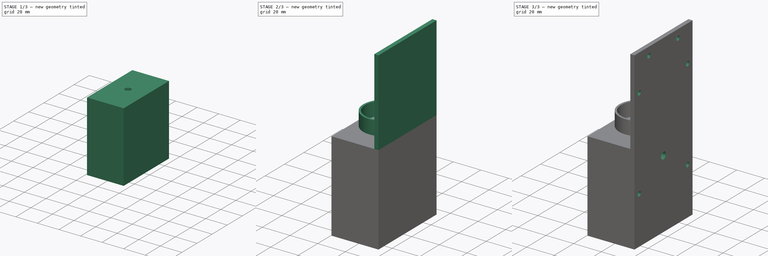
[diagram: build sequence overview — one tinted view per stage of 3, left to right]
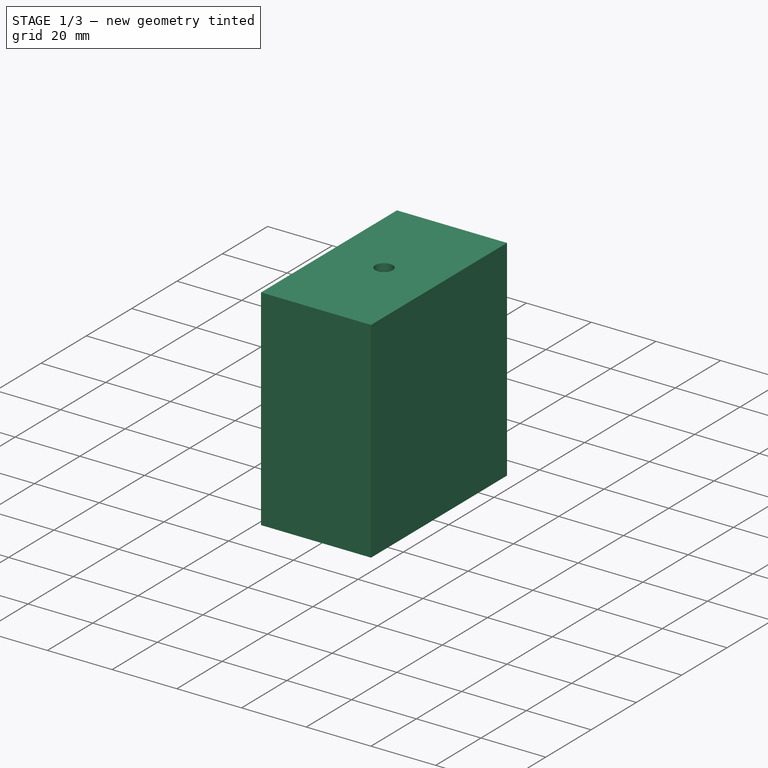
[diagram: stage 1 of 3 — iso view after this stage's code; geometry added in this stage tinted green]
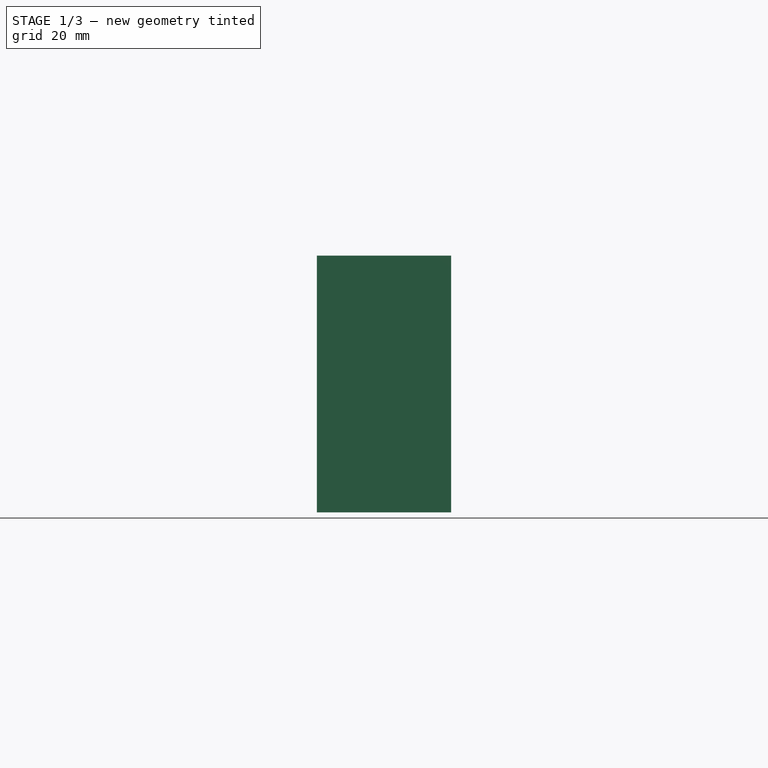
[diagram: stage 1 of 3 — front view after this stage's code; geometry added in this stage tinted green]
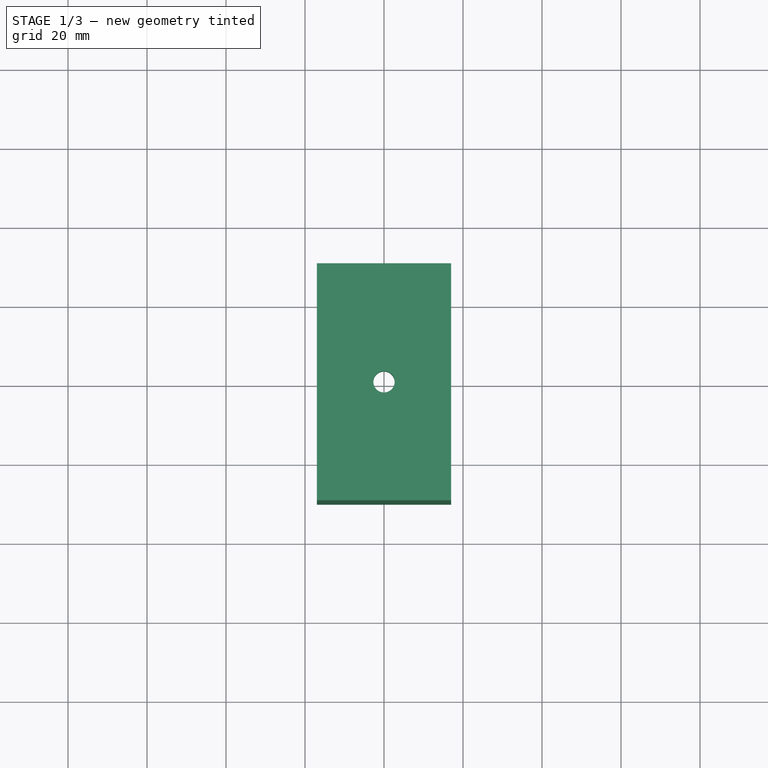
[diagram: stage 1 of 3 — top view after this stage's code; geometry added in this stage tinted green]
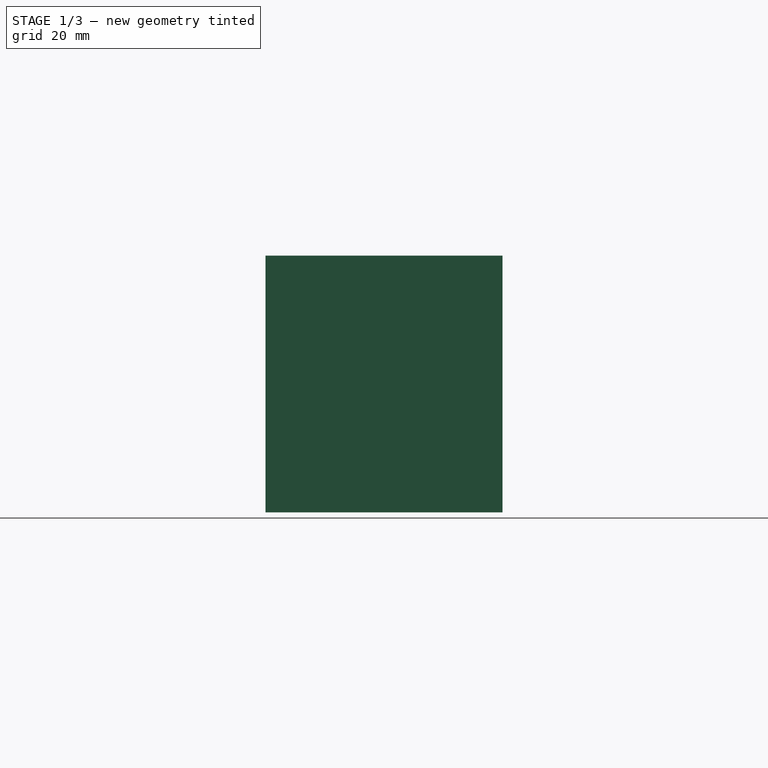
[diagram: stage 1 of 3 — right view after this stage's code; geometry added in this stage tinted green]
FCSTD DOCUMENT  (FreeCAD 0.20R29603 (Git))
Label: blowpipe_adapter_4
License: All rights reserved
LicenseURL: http://en.wikipedia.org/wiki/All_rights_reserved
objects: Sketcher::SketchObject×7, PartDesign::Pad×3, PartDesign::Pocket×3, PartDesign::Body×2, Spreadsheet::Sheet×1, PartDesign::Revolution×1, PartDesign::Boolean×1, Part::Feature×1
note: 25 computed .brp shape members not serialized (recipe doc carries the construction recipe); baked Part::Feature solids carry a one-line shape summary decoded from their .brp

FEATURE [Sketcher::SketchObject] Sketch
  FullyConstrained = true
  MapMode = 5
  Placement = pos=(0,0,0) rot=(1,0,0;1.5708rad)
  Support = -> [XZ_Plane]
  expr: Constraints[14] = Spreadsheet.OR
  expr: Constraints[15] = Spreadsheet.BP_R + Spreadsheet.BP_OR_D / 3
  expr: Constraints[16] = Spreadsheet.MP_R
  expr: Constraints[17] = Spreadsheet.BP_LENGTH
  expr: Constraints[18] = Spreadsheet.MP_CONE
  expr: Constraints[19] = Spreadsheet.MP_LENGTH
  expr: Constraints[21] = Spreadsheet.M_R + 0.2
  expr: Constraints[22] = Spreadsheet.M_LENGTH
  expr: Constraints[23] = Spreadsheet.BP_OR_D
  expr: Constraints[25] = (Spreadsheet.BP_OR_ID + Spreadsheet.BP_OR_D) / 2
  expr: Constraints[26] = Spreadsheet.BP_OR_D / 2 + 3
  expr: Constraints[27] = 1.5 * Spreadsheet.BP_OR_D + 2 * 4
  expr: Constraints[38] = Spreadsheet.M_OR_D
  expr: Constraints[39] = (Spreadsheet.M_OR_D + Spreadsheet.M_OR_ID) / 2
  expr: Constraints[44] = (Spreadsheet.M_OR_D + Spreadsheet.M_OR_ID) / 2
  sketch-geometry (14):
    g0: LineSegment StartX=8.33333 StartY=0 StartZ=0 EndX=15 EndY=0 EndZ=0
    g1: LineSegment StartX=15 StartY=0 StartZ=0 EndX=15 EndY=65 EndZ=0
    g2: LineSegment StartX=15 StartY=65 StartZ=0 EndX=2.7 EndY=65 EndZ=0
    g3: LineSegment StartX=2.7 StartY=65 StartZ=0 EndX=2.7 EndY=62.9539 EndZ=0
    g4: LineSegment StartX=2.7 StartY=55 StartZ=0 EndX=5 EndY=55 EndZ=0
    g5: LineSegment StartX=5 StartY=55 StartZ=0 EndX=5 EndY=45 EndZ=0
    g6: LineSegment StartX=5 StartY=45 StartZ=0 EndX=8.33333 EndY=35 EndZ=0
    g7: LineSegment StartX=8.33333 StartY=35 StartZ=0 EndX=8.33333 EndY=12.9285 EndZ=0
    g8: ArcOfCircle CenterX=8.75 CenterY=4.25 CenterZ=0 NormalX=0 NormalY=0 NormalZ=1 AngleXU=0 Radius=1.25 StartAngle=4.37255 EndAngle=8.19382
    g9: ArcOfCircle CenterX=8.75 CenterY=11.75 CenterZ=0 NormalX=0 NormalY=0 NormalZ=1 AngleXU=0 Radius=1.25 StartAngle=4.37255 EndAngle=8.19382
    g10: LineSegment StartX=8.33333 StartY=3.07149 StartZ=0 EndX=8.33333 EndY=0 EndZ=0
    g11: LineSegment StartX=8.33333 StartY=10.5715 StartZ=0 EndX=8.33333 EndY=5.42851 EndZ=0
    g12: ArcOfCircle CenterX=3 CenterY=62 CenterZ=0 NormalX=0 NormalY=0 NormalZ=1 AngleXU=0 Radius=1 StartAngle=4.4077 EndAngle=8.15867
    g13: LineSegment StartX=2.7 StartY=61.0461 StartZ=0 EndX=2.7 EndY=55 EndZ=0
  constraints (45):
    c: PointOnObject(g0,g-1)
    c: Horizontal(g0)
    c: Coincident(g0,g1)
    c: Vertical(g1)
    c: Coincident(g1,g2)
    c: Horizontal(g2)
    c: Coincident(g2,g3)
    c: Vertical(g3)
    c: Coincident(g13,g4)
    c: Coincident(g4,g5)
    c: Coincident(g5,g6)
    c: Coincident(g6,g7)
    c: Coincident(g10,g0)
    c: Vertical(g5)
    c: DistanceX(g-1,g0) = 15
    c: DistanceX(g-1,g0) = 8.33333
    c: DistanceX(g-1,g5) = 5
    c: DistanceY(g10,g7) = 35
    c: DistanceY(g6,g5) = 10
    c: DistanceY(g5,g5) = 10
    c: Horizontal(g4)
    c: DistanceX(g-1,g13) = 2.7
    c: DistanceY(g13,g3) = 10
    c: Diameter(g8) = 2.5
    c: Equal(g8,g9)
    c: DistanceX(g-1,g8) = 8.75
    c: DistanceY(g-1,g8) = 4.25
    c: DistanceY(g-1,g9) = 11.75
    c: Vertical(g9,g8)
    c: Coincident(g11,g8)
    c: Coincident(g10,g8)
    c: Coincident(g7,g9)
    c: Coincident(g11,g9)
    c: Vertical(g10)
    c: Vertical(g11)
    c: Vertical(g7)
    c: Vertical(g8,g8)
    c: Vertical(g9,g7)
    c: Diameter(g12) = 2
    c: DistanceY(g12,g2) = 3
    c: Coincident(g3,g12)
    c: Coincident(g13,g12)
    c: Vertical(g13)
    c: Vertical(g3,g12)
    c: DistanceX(g-1,g12) = 3
FEATURE [Spreadsheet::Sheet] Spreadsheet
  cells = A1=BP_R; B1(BP_R)==15 / 2; C1=set; A2=BP_OR_ID; B2(BP_OR_ID)=15; C2=set; A3=BP_OR_D; B3(BP_OR_D)=2.5; C3=set; A4=BP_LENGTH; B4(BP_LENGTH)=35; C4=set; A5=M_R; B5(M_R)==5 / 2; C5=set; A6=M_OR_ID; B6(M_OR_ID)=4; C6=set; A7=M_OR_D; B7(M_OR_D)=2; C7=set; A8=M_LENGTH; B8(M_LENGTH)=10; C8=set; A9=MP_CONE_LENGTH; B9(MP_CONE)=10; C9=set; A10=MP_R; B10(MP_R)==10 / 2; C10=set; A11=MP_LENGTH; B11(MP_LENGTH)=10; C11=set; A12=OR; B12(OR)==30 / 2; C12=set; A13=SIDE; B13(SIDE)=40; C13=set; A14=HEIGHT; B14(HEIGHT)==B4 + B8 + B9 + B11; A15=PCB_WIDTH; B15(PCB_WIDTH)=56; C15=set; A16=PCB_LENGTH; B16(PCB_LENGTH)=72; C16=set; A17=PCB_APS_W_OFF; B17(PCB_APS_W_OFF)=17.3; C17=set; A18=PCB_VENT; B18(PCB_VENT)=18.5; C18=set; A19=PCB_MOUNT_Y_SOUTH; B19(PCB_MOUNT_Y_SOUTH)==B22 - B18 + 3; A20=PCB_MOUNT_Y_NORTH; B20(PCB_MOUNT_Y_NORTH)==B19 + B16 - 6; A21=MOTOR_LENGTH; B21(MOTOR_LENGTH)=62; C21=set; A22=PCB_VENT_OFFSET; B22(PCB_VENT_OFFSET)==B14 - B8 - B9 / 2
FEATURE [PartDesign::Revolution] Revolution
  Angle = 360
  Axis = (0,-2e-16,1)
  Base = (0,0,0)
  Placement = pos=(0,0,0) rot=(1,0,0;1.5708rad)
  Profile = -> Sketch
  ReferenceAxis = -> Sketch [V_Axis]
  Reversed = true
FEATURE [PartDesign::Body] Body  label="BP_mount"
  Group = -> [Sketch,Revolution]
  Origin = -> Origin
  Tip = -> Revolution
FEATURE [Sketcher::SketchObject] Sketch001
  FullyConstrained = true
  MapMode = 5
  Support = -> [XY_Plane001]
  expr: Constraints[13] = 34
  expr: Constraints[2] = Spreadsheet.OR * 2
  sketch-geometry (7):
    g0: GeomPoint X=0 Y=0 Z=0
    g1: Circle CenterX=0 CenterY=0 CenterZ=0 NormalX=0 NormalY=0 NormalZ=1 AngleXU=0 Radius=15
    g2: LineSegment StartX=-17 StartY=30 StartZ=0 EndX=-17 EndY=-30 EndZ=0
    g3: LineSegment StartX=-17 StartY=-30 StartZ=0 EndX=17 EndY=-30 EndZ=0
    g4: LineSegment StartX=17 StartY=-30 StartZ=0 EndX=17 EndY=30 EndZ=0
    g5: LineSegment StartX=17 StartY=30 StartZ=0 EndX=-17 EndY=30 EndZ=0
    g6: GeomPoint X=0 Y=0 Z=0
  constraints (15):
    c: Coincident(g0,g-1)
    c: Coincident(g1,g0)
    c: Diameter(g1) = 30
    c: Coincident(g2,g3)
    c: Coincident(g3,g4)
    c: Coincident(g4,g5)
    c: Coincident(g5,g2)
    c: Horizontal(g3)
    c: Horizontal(g5)
    c: Vertical(g2)
    c: Vertical(g4)
    c: Symmetric(g3,g2,g6)
    c: Coincident(g6,g1)
    c: DistanceX(g3,g3) = 34
    c: DistanceY(g4,g4) = 60
FEATURE [PartDesign::Boolean] Boolean
  Group = -> [Body]
  Type = 0
FEATURE [PartDesign::Pad] Pad  label="rectengularpad"
  BaseFeature = -> Boolean
  Direction = (0,0,1)
  Length = 65
  Length2 = 10
  Profile = -> Sketch001
  ReferenceAxis = -> Sketch001 [N_Axis]
  Type = 0
  expr: Length = Spreadsheet.HEIGHT
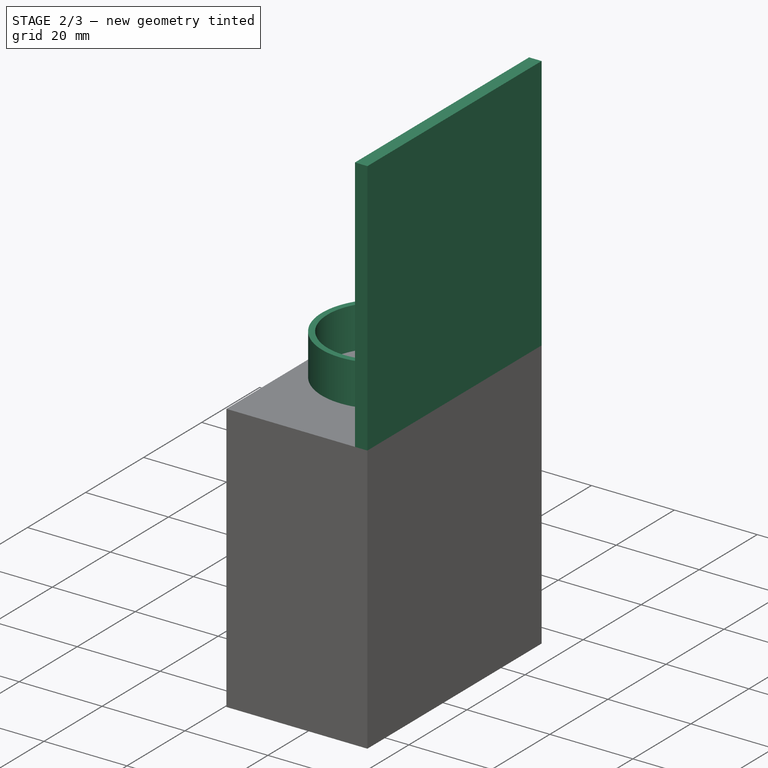
[diagram: stage 2 of 3 — iso view after this stage's code; geometry added in this stage tinted green]
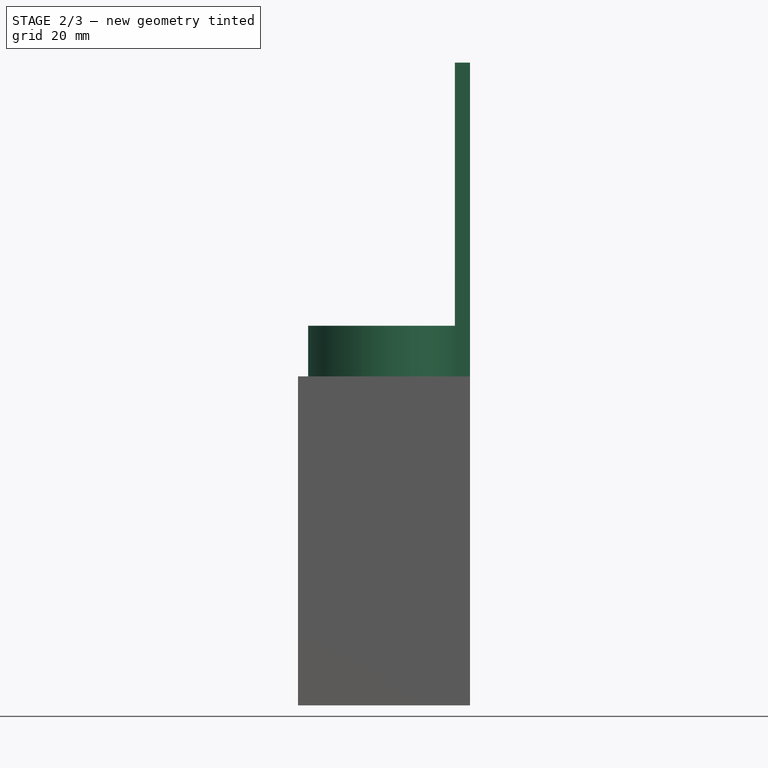
[diagram: stage 2 of 3 — front view after this stage's code; geometry added in this stage tinted green]
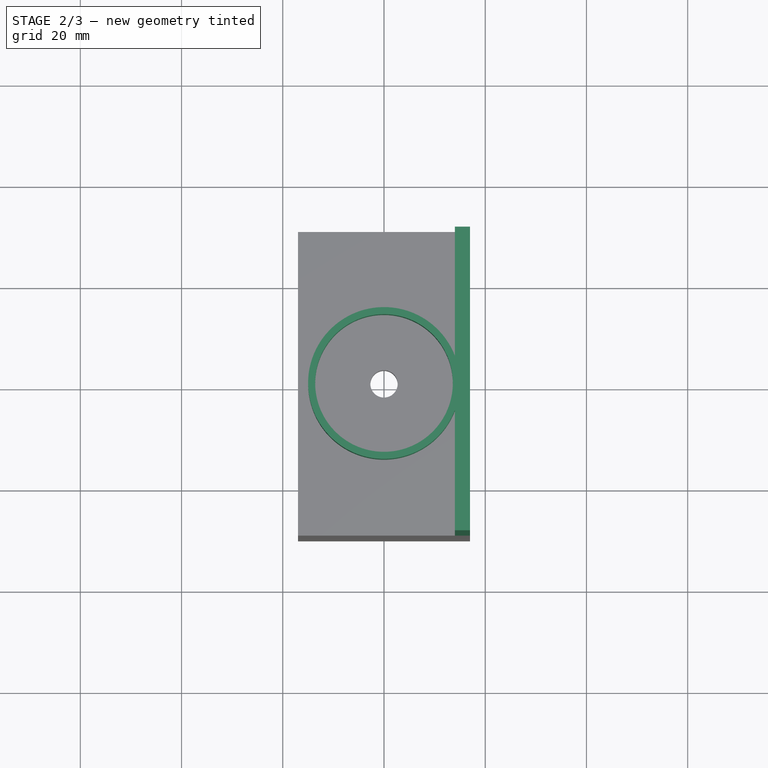
[diagram: stage 2 of 3 — top view after this stage's code; geometry added in this stage tinted green]
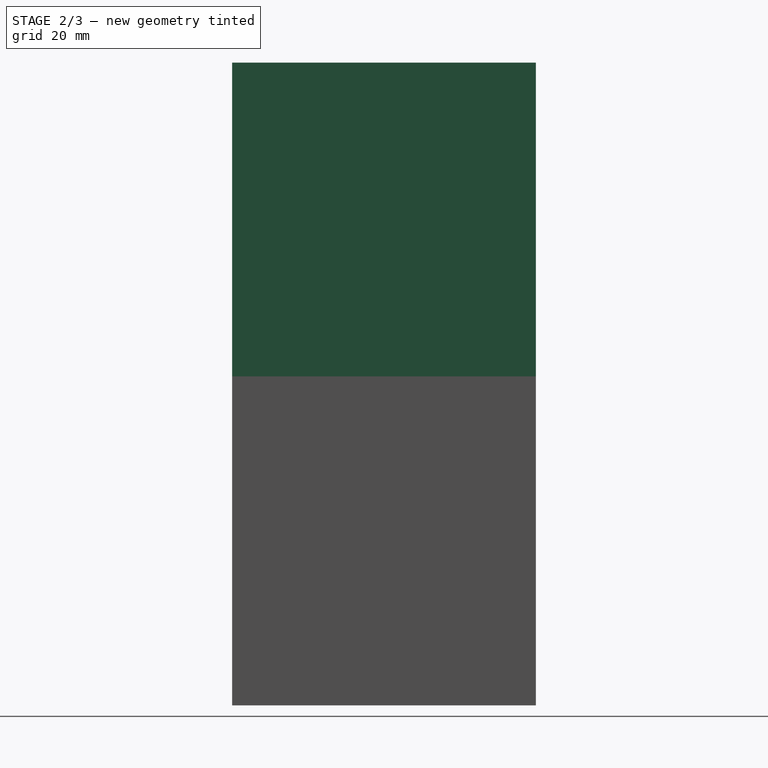
[diagram: stage 2 of 3 — right view after this stage's code; geometry added in this stage tinted green]
FEATURE [Sketcher::SketchObject] Sketch002
  FullyConstrained = true
  MapMode = 5
  Placement = pos=(0,0,65) rot=(0,0,1;0rad)
  Support = -> [Pad]
  sketch-geometry (2):
    g0: Circle CenterX=0 CenterY=0 CenterZ=0 NormalX=0 NormalY=0 NormalZ=1 AngleXU=0 Radius=13.6
    g1: Circle CenterX=0 CenterY=0 CenterZ=0 NormalX=0 NormalY=0 NormalZ=1 AngleXU=0 Radius=15
  constraints (4):
    c: Coincident(g0,g-1)
    c: Coincident(g1,g0)
    c: Diameter(g0) = 27.2
    c: Diameter(g1) = 30
FEATURE [PartDesign::Pad] Pad001  label="motorshroud"
  BaseFeature = -> Pad
  Direction = (0,0,1)
  Length = 10
  Length2 = 10
  Profile = -> Sketch002
  ReferenceAxis = -> Sketch002 [N_Axis]
  Type = 0
FEATURE [Sketcher::SketchObject] Sketch003
  FullyConstrained = true
  MapMode = 5
  Placement = pos=(0,0,65) rot=(0,0,1;0rad)
  Support = -> [Pad001]
  expr: Constraints[9] = Spreadsheet.PCB_WIDTH + 4
  sketch-geometry (4):
    g0: LineSegment StartX=14 StartY=30 StartZ=0 EndX=17 EndY=30 EndZ=0
    g1: LineSegment StartX=17 StartY=30 StartZ=0 EndX=17 EndY=-30 EndZ=0
    g2: LineSegment StartX=17 StartY=-30 StartZ=0 EndX=14 EndY=-30 EndZ=0
    g3: LineSegment StartX=14 StartY=-30 StartZ=0 EndX=14 EndY=30 EndZ=0
  constraints (11):
    c: Coincident(g0,g1)
    c: Coincident(g1,g2)
    c: Coincident(g2,g3)
    c: Coincident(g3,g0)
    c: Horizontal(g0)
    c: Horizontal(g2)
    c: Vertical(g1)
    c: DistanceX(g0,g0) = 3
    c: DistanceX(g-1,g2) = 14
    c: DistanceY(g1,g1) = 60
    c: Symmetric(g2,g0,g-1)
FEATURE [PartDesign::Pad] Pad002  label="PCB_battery"
  BaseFeature = -> Pad001
  Direction = (0,0,1)
  Length = 62
  Length2 = 10
  Profile = -> Sketch003
  ReferenceAxis = -> Sketch003 [N_Axis]
  Type = 0
  expr: Length = Spreadsheet.MOTOR_LENGTH
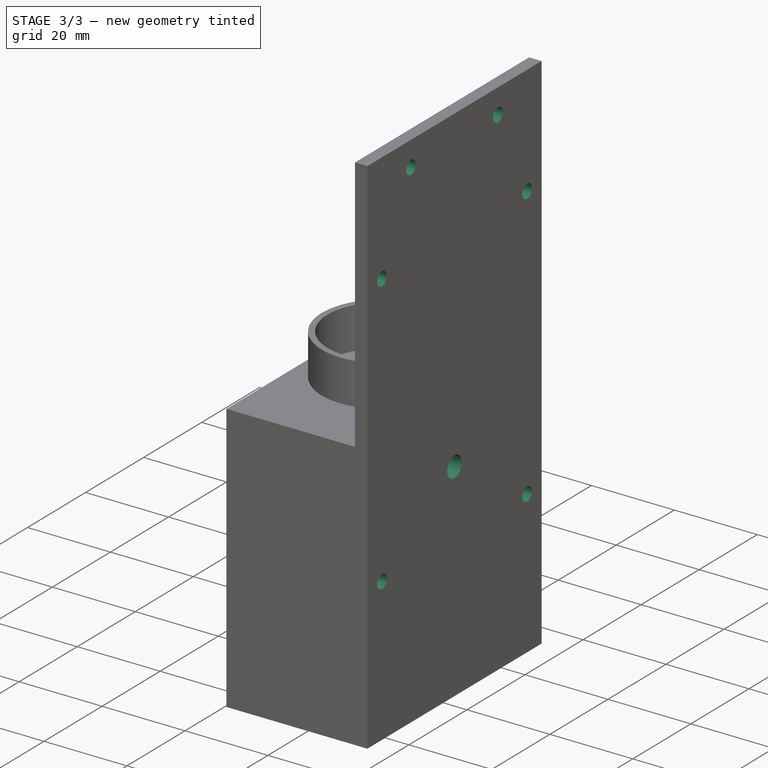
[diagram: stage 3 of 3 — iso view after this stage's code; geometry added in this stage tinted green]
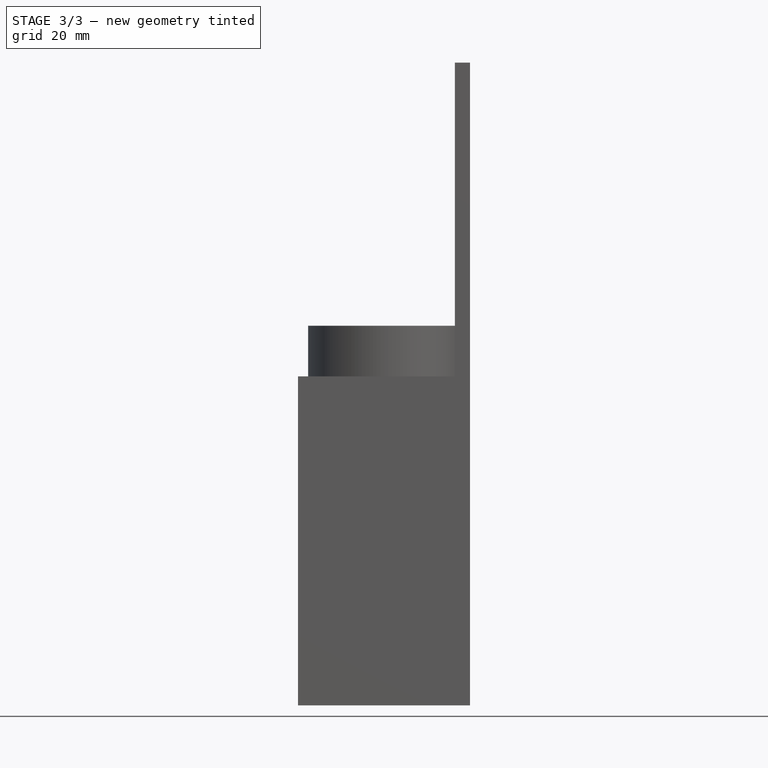
[diagram: stage 3 of 3 — front view after this stage's code; geometry added in this stage tinted green]
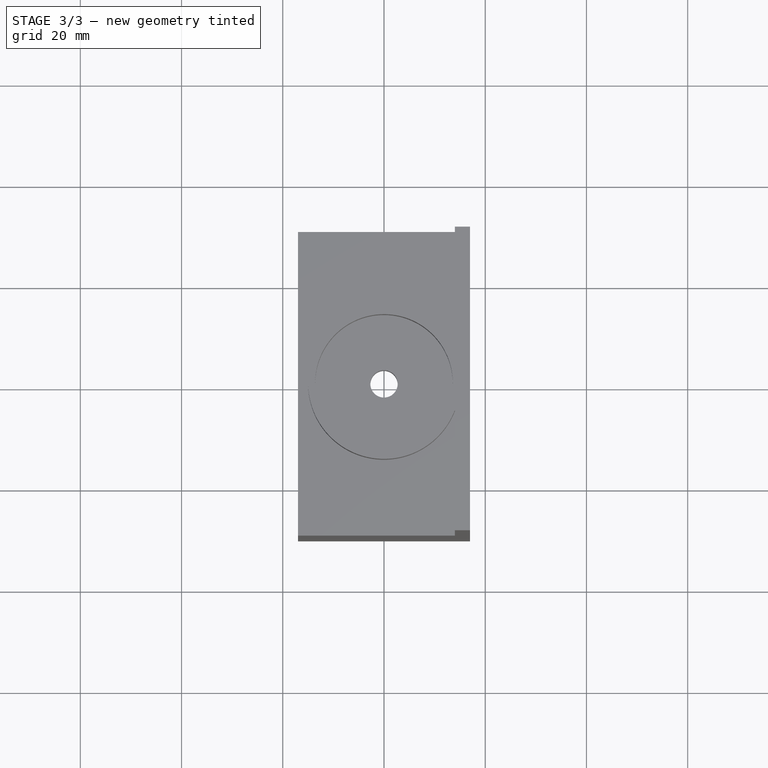
[diagram: stage 3 of 3 — top view after this stage's code; geometry added in this stage tinted green]
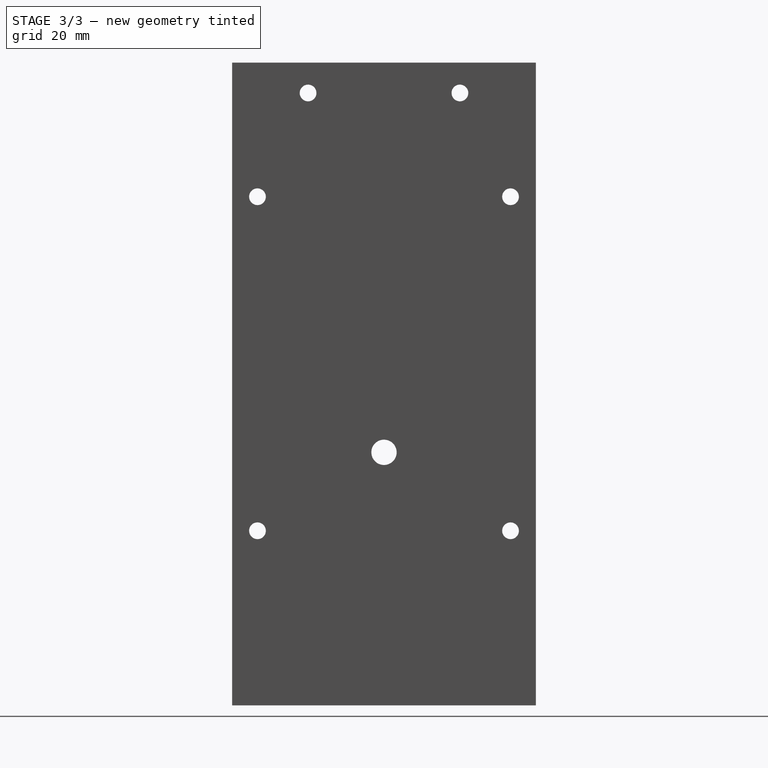
[diagram: stage 3 of 3 — right view after this stage's code; geometry added in this stage tinted green]
FEATURE [Sketcher::SketchObject] Sketch004
  FullyConstrained = true
  MapMode = 5
  Placement = pos=(17,0,0) rot=(0.57735,0.57735,0.57735;2.0944rad)
  Support = -> [Pad002]
  expr: Constraints[14] = Spreadsheet.HEIGHT + Spreadsheet.MOTOR_LENGTH - 6
  expr: Constraints[7] = Spreadsheet.PCB_MOUNT_Y_SOUTH
  expr: Constraints[8] = Spreadsheet.PCB_MOUNT_Y_NORTH
  expr: Constraints[9] = Spreadsheet.PCB_WIDTH / 2 - 3
  sketch-geometry (6):
    g0: Circle CenterX=-25 CenterY=34.5 CenterZ=0 NormalX=0 NormalY=0 NormalZ=1 AngleXU=0 Radius=1.65
    g1: Circle CenterX=25 CenterY=34.5 CenterZ=0 NormalX=0 NormalY=0 NormalZ=1 AngleXU=0 Radius=1.65
    g2: Circle CenterX=25 CenterY=100.5 CenterZ=0 NormalX=0 NormalY=0 NormalZ=1 AngleXU=0 Radius=1.65
    g3: Circle CenterX=-25 CenterY=100.5 CenterZ=0 NormalX=0 NormalY=0 NormalZ=1 AngleXU=0 Radius=1.65
    g4: Circle CenterX=-15 CenterY=121 CenterZ=0 NormalX=0 NormalY=0 NormalZ=1 AngleXU=0 Radius=1.65
    g5: Circle CenterX=15 CenterY=121 CenterZ=0 NormalX=0 NormalY=0 NormalZ=1 AngleXU=0 Radius=1.65
  constraints (16):
    c: Diameter(g0) = 3.3
    c: Equal(g0,g1)
    c: Equal(g1,g2)
    c: Equal(g2,g3)
    c: Horizontal(g3,g2)
    c: Vertical(g0,g3)
    c: Vertical(g2,g1)
    c: DistanceY(g-1,g0) = 34.5
    c: DistanceY(g-1,g3) = 100.5
    c: DistanceX(g0,g-1) = 25
    c: Symmetric(g0,g1,g-2)
    c: Symmetric(g4,g5,g-2)
    c: Diameter(g4) = 3.3
    c: Equal(g4,g5)
    c: DistanceY(g-1,g4) = 121
    c: DistanceX(g4,g5) = 30
FEATURE [PartDesign::Pocket] Pocket  label="PCMmount"
  BaseFeature = -> Pad002
  Direction = (-1,0,0)
  Length = 50
  Length2 = 5
  Profile = -> Sketch004
  ReferenceAxis = -> Sketch004 [N_Axis]
  Type = 0
FEATURE [Sketcher::SketchObject] Sketch005
  FullyConstrained = true
  MapMode = 5
  Placement = pos=(17,0,0) rot=(0.57735,0.57735,0.57735;2.0944rad)
  Support = -> [Pocket]
  expr: Constraints[2] = Spreadsheet.PCB_VENT_OFFSET
  sketch-geometry (1):
    g0: Circle CenterX=0 CenterY=50 CenterZ=0 NormalX=0 NormalY=0 NormalZ=1 AngleXU=0 Radius=2.5
  constraints (3):
    c: PointOnObject(g0,g-2)
    c: Diameter(g0) = 5
    c: DistanceY(g-1,g0) = 50
FEATURE [PartDesign::Pocket] Pocket001  label="pressure_venting"
  BaseFeature = -> Pocket
  Direction = (-1,0,0)
  Length = 50
  Length2 = 5
  Profile = -> Sketch005
  ReferenceAxis = -> Sketch005 [N_Axis]
  Type = 0
FEATURE [Part::Feature] Part__Feature  label="PCBenclosure"
  Placement = pos=(20,0,67) rot=(0.707107,0,0.707107;3.14159rad)
  shape: bbox 23 x 64 x 80 mm, 62 faces (baked)
FEATURE [Sketcher::SketchObject] Sketch006
  FullyConstrained = true
  MapMode = 5
  Placement = pos=(-17,0,0) rot=(0.57735,-0.57735,-0.57735;2.0944rad)
  Support = -> [Pocket001]
  expr: Constraints[38] = Spreadsheet.PCB_MOUNT_Y_SOUTH
  expr: Constraints[39] = Spreadsheet.PCB_WIDTH / 2 - 3
  expr: Constraints[40] = Spreadsheet.PCB_WIDTH / 2 - 3
  sketch-geometry (14):
    g0: LineSegment StartX=-22.15 StartY=32.8546 StartZ=0 EndX=-22.15 EndY=36.1454 EndZ=0
    g1: LineSegment StartX=-22.15 StartY=36.1454 StartZ=0 EndX=-25 EndY=37.7909 EndZ=0
    g2: LineSegment StartX=-25 StartY=37.7909 StartZ=0 EndX=-27.85 EndY=36.1454 EndZ=0
    g3: LineSegment StartX=-27.85 StartY=36.1454 StartZ=0 EndX=-27.85 EndY=32.8546 EndZ=0
    g4: LineSegment StartX=-27.85 StartY=32.8546 StartZ=0 EndX=-25 EndY=31.2091 EndZ=0
    g5: LineSegment StartX=-25 StartY=31.2091 StartZ=0 EndX=-22.15 EndY=32.8546 EndZ=0
    g6: Circle CenterX=-25 CenterY=34.5 CenterZ=0 NormalX=0 NormalY=0 NormalZ=1 AngleXU=0 Radius=3.2909
    g7: LineSegment StartX=27.85 StartY=32.8546 StartZ=0 EndX=27.85 EndY=36.1454 EndZ=0
    g8: LineSegment StartX=27.85 StartY=36.1454 StartZ=0 EndX=25 EndY=37.7909 EndZ=0
    g9: LineSegment StartX=25 StartY=37.7909 StartZ=0 EndX=22.15 EndY=36.1454 EndZ=0
    g10: LineSegment StartX=22.15 StartY=36.1454 StartZ=0 EndX=22.15 EndY=32.8546 EndZ=0
    g11: LineSegment StartX=22.15 StartY=32.8546 StartZ=0 EndX=25 EndY=31.2091 EndZ=0
    g12: LineSegment StartX=25 StartY=31.2091 StartZ=0 EndX=27.85 EndY=32.8546 EndZ=0
    g13: Circle CenterX=25 CenterY=34.5 CenterZ=0 NormalX=0 NormalY=0 NormalZ=1 AngleXU=0 Radius=3.2909
  constraints (34):
    c: Coincident(g0,g1)
    c: Coincident(g1,g2)
    c: Coincident(g2,g3)
    c: Coincident(g3,g4)
    c: Coincident(g4,g5)
    c: Coincident(g5,g0)
    c: Equal(g0, g1-g5) x5
    c: PointOnObject(g0,g6)
    c: PointOnObject(g1,g6)
    c: PointOnObject(g2,g6)
    c: PointOnObject(g3,g6)
    c: PointOnObject(g4,g6)
    c: PointOnObject(g5,g6)
    c: Coincident(g7,g8)
    c: Coincident(g8,g9)
    c: Coincident(g9,g10)
    c: Coincident(g10,g11)
    c: Coincident(g11,g12)
    c: Coincident(g12,g7)
    c: Equal(g7, g8-g12) x5
    c: PointOnObject(g7,g13)
    c: PointOnObject(g8,g13)
    c: PointOnObject(g9,g13)
    c: PointOnObject(g10,g13)
    c: PointOnObject(g11,g13)
    c: PointOnObject(g12,g13)
    c: DistanceX(g3,g0) = 5.7
    c: Horizontal(g6,g13)
    c: Horizontal(g3,g0)
    c: Horizontal(g10,g7)
    c: DistanceY(g-1,g6) = 34.5
    c: DistanceX(g6,g-1) = 25
    c: DistanceX(g-1,g13) = 25
    c: DistanceX(g10,g7) = 5.7
FEATURE [PartDesign::Pocket] Pocket002  label="hexnut"
  BaseFeature = -> Pocket001
  Direction = (1,0,0)
  Length = 5
  Length2 = 5
  Profile = -> Sketch006
  ReferenceAxis = -> Sketch006 [N_Axis]
  Type = 0
FEATURE [PartDesign::Body] Body001  label="SQUARE"
  Group = -> [Sketch001,Boolean,Pad,Sketch002,Pad001,Sketch003,Pad002,Sketch004,Pocket,Sketch005,Pocket001,Sketch006,Pocket002]
  Origin = -> Origin001
  Tip = -> Pocket002
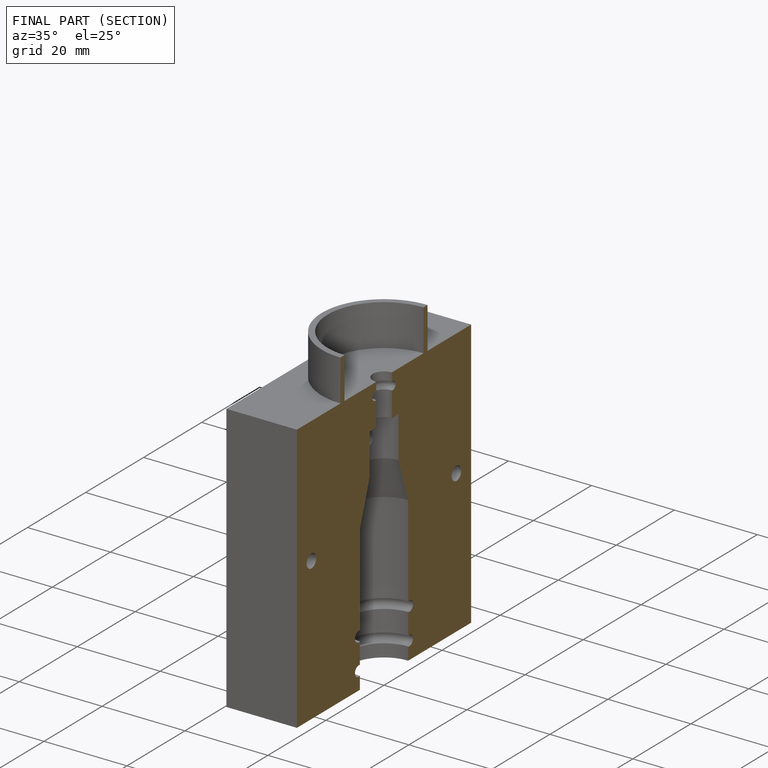
[diagram: finished part — half-section view (interior)]
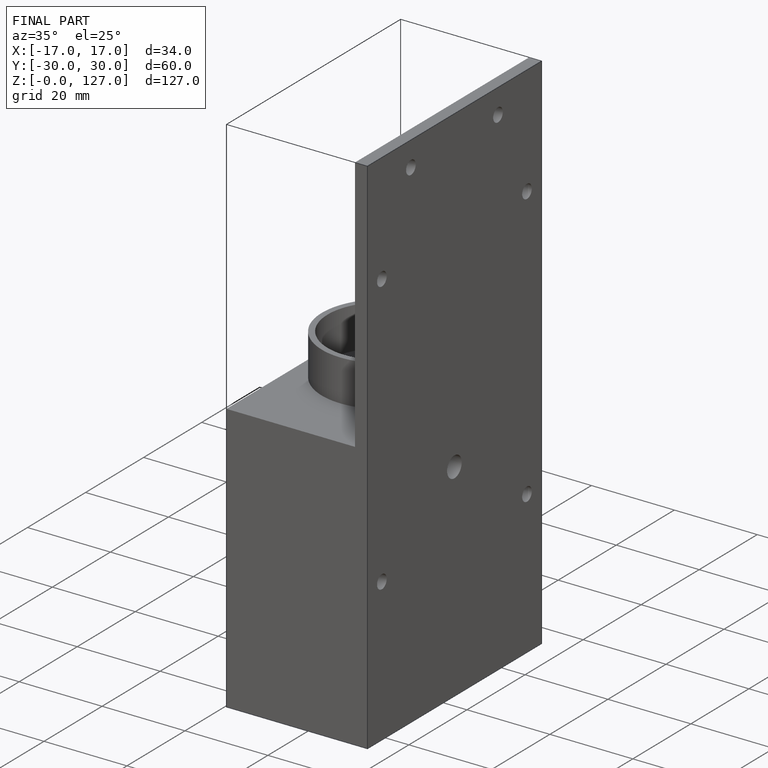
[diagram: finished part — iso view with bounding-box wireframe]
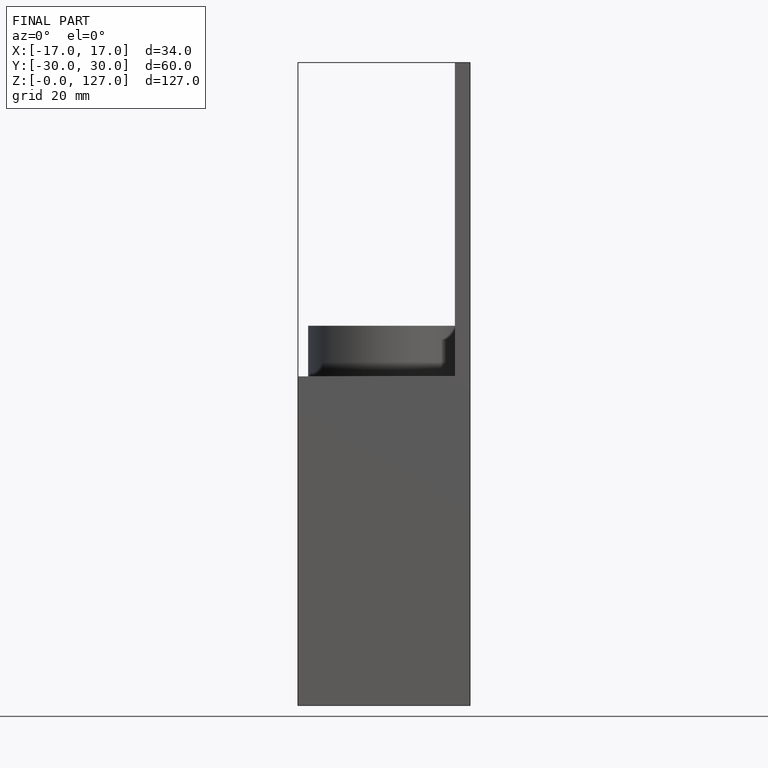
[diagram: finished part — front view with bounding-box wireframe]
